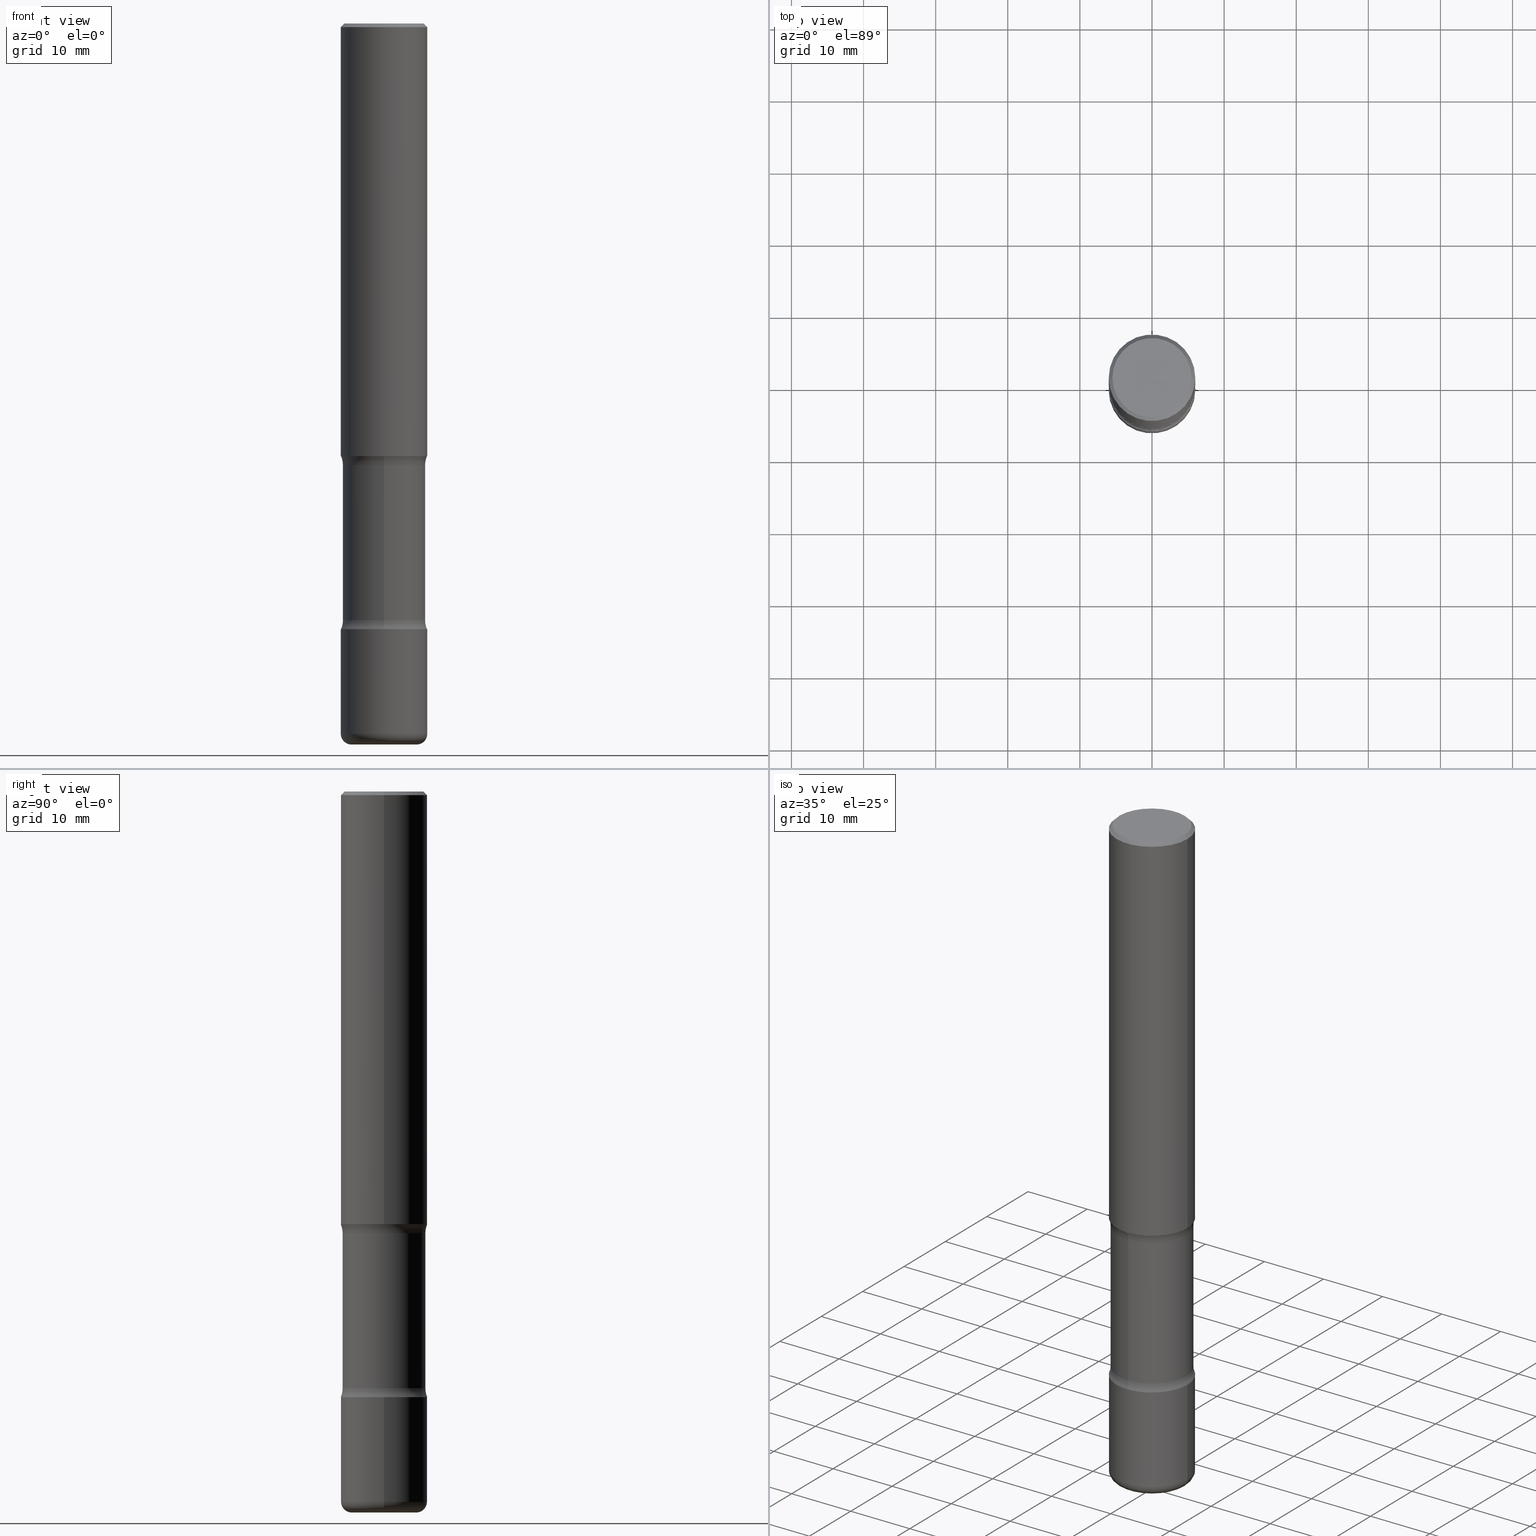
[diagram: canonical four-view strip — front | top / right | iso, engineering-drawing reading convention]
A machine part, canonical four-view strip (front | top / right | iso — engineering-drawing reading convention). The complete STEP part file that produces these views, byte-faithful:
ISO-10303-21;
HEADER;
FILE_DESCRIPTION (( 'STEP AP203' ),
    '1' );
FILE_NAME ('44783.STEP',
    '2024-03-02T03:13:59',
    ( '' ),
    ( '' ),
    'SwSTEP 2.0',
    'SolidWorks 2023',
    '' );
FILE_SCHEMA (( 'CONFIG_CONTROL_DESIGN' ));
ENDSEC;

DATA;
#1 = ADVANCED_FACE ( 'NONE', ( #389 ), #476, .F. ) ;
#2 = FACE_OUTER_BOUND ( 'NONE', #251, .T. ) ;
#3 = DIRECTION ( 'NONE',  ( -2.438088387897960049E-29, 3.491481338843145188E-15, 1.000000000000000000 ) ) ;
#4 = DIRECTION ( 'NONE',  ( 1.000000000000000000, -6.982962677686266711E-15, 0.000000000000000000 ) ) ;
#5 = CARTESIAN_POINT ( 'NONE',  ( 0.2361999999999999933, -1.649375784469496131E-15, 1.151752954443000088E-29 ) ) ;
#6 = VERTEX_POINT ( 'NONE', #385 ) ;
#7 = APPROVAL_STATUS ( 'not_yet_approved' ) ;
#8 = CARTESIAN_POINT ( 'NONE',  ( 1.649375784469555295E-15, 0.2361999999999919719, -2.362200000000000966 ) ) ;
#9 = AXIS2_PLACEMENT_3D ( 'NONE', #273, #316, #485 ) ;
#10 = SECURITY_CLASSIFICATION ( '', '', #538 ) ;
#11 = CALENDAR_DATE ( 2024, 1, 3 ) ;
#12 = DIRECTION ( 'NONE',  ( -0.7071067811865472397, 2.468850131082253905E-15, -0.7071067811865477948 ) ) ;
#13 = EDGE_CURVE ( 'NONE', #264, #363, #218, .T. ) ;
#14 = PERSON_AND_ORGANIZATION_ROLE ( 'design_owner' ) ;
#15 = PERSON_AND_ORGANIZATION ( #447, #151 ) ;
#16 = DIRECTION ( 'NONE',  ( 6.982962677686265922E-15, 1.000000000000000000, -3.469747663417771480E-15 ) ) ;
#17 = CIRCLE ( 'NONE', #248, 0.2362000000000002153 ) ;
#18 = AXIS2_PLACEMENT_3D ( 'NONE', #168, #346, #388 ) ;
#19 = ORIENTED_EDGE ( 'NONE', *, *, #306, .T. ) ;
#20 = EDGE_CURVE ( 'NONE', #77, #231, #413, .T. ) ;
#21 =( CONVERSION_BASED_UNIT ( 'INCH', #232 ) LENGTH_UNIT ( ) NAMED_UNIT ( #157 ) );
#22 = CARTESIAN_POINT ( 'NONE',  ( 7.966181769532969380E-29, -1.137359630996297475E-14, -3.257527452153434755 ) ) ;
#23 = ADVANCED_FACE ( 'NONE', ( #41 ), #349, .T. ) ;
#24 = CARTESIAN_POINT ( 'NONE',  ( 1.577800417023270691E-15, 0.2259499999999915743, -2.411772547846566805 ) ) ;
#25 = CARTESIAN_POINT ( 'NONE',  ( -1.585289574834976853E-15, -0.2259500000000114195, -3.257527452153434311 ) ) ;
#26 = AXIS2_PLACEMENT_3D ( 'NONE', #325, #106, #155 ) ;
#27 = VECTOR ( 'NONE', #36, 39.37007874015748143 ) ;
#28 = CARTESIAN_POINT ( 'NONE',  ( -0.2361999999999998545, 1.579546157692632044E-15, -0.02000000000000006981 ) ) ;
#29 = ADVANCED_FACE ( 'NONE', ( #521 ), #341, .F. ) ;
#30 = LINE ( 'NONE', #161, #42 ) ;
#31 = EDGE_CURVE ( 'NONE', #81, #6, #17, .T. ) ;
#32 = ORIENTED_EDGE ( 'NONE', *, *, #221, .T. ) ;
#33 = CARTESIAN_POINT ( 'NONE',  ( 0.2361999999999998545, -1.690279253850497785E-15, -0.02000000000000006981 ) ) ;
#34 = ORIENTED_EDGE ( 'NONE', *, *, #267, .T. ) ;
#35 = VECTOR ( 'NONE', #12, 39.37007874015748143 ) ;
#36 = DIRECTION ( 'NONE',  ( -2.445468806185136877E-29, 3.491481338843145188E-15, 1.000000000000000000 ) ) ;
#37 = EDGE_LOOP ( 'NONE', ( #119, #420, #499, #373 ) ) ;
#38 = CARTESIAN_POINT ( 'NONE',  ( -1.043851414335219820E-46, 1.490343170380447200E-32, 4.268512490100411279E-18 ) ) ;
#39 = ORIENTED_EDGE ( 'NONE', *, *, #433, .T. ) ;
#40 = DIRECTION ( 'NONE',  ( -2.445468806185136597E-29, 3.491481338843145583E-15, 1.000000000000000000 ) ) ;
#41 = FACE_OUTER_BOUND ( 'NONE', #446, .T. ) ;
#42 = VECTOR ( 'NONE', #456, 39.37007874015748143 ) ;
#43 = EDGE_CURVE ( 'NONE', #162, #298, #82, .T. ) ;
#44 = CARTESIAN_POINT ( 'NONE',  ( 9.627810689950883669E-29, -1.374596203102546341E-14, -3.937000000000000277 ) ) ;
#45 = DIRECTION ( 'NONE',  ( 2.573332013070723283E-29, -3.308373949061201717E-15, -1.000000000000000000 ) ) ;
#46 = DIRECTION ( 'NONE',  ( 6.982962677686265922E-15, 1.000000000000000000, -3.308373949061201717E-15 ) ) ;
#47 = DATE_TIME_ROLE ( 'classification_date' ) ;
#48 = CARTESIAN_POINT ( 'NONE',  ( 8.087409888934865187E-29, -1.154667793568816723E-14, -3.307100000000000151 ) ) ;
#49 = APPLICATION_CONTEXT ( 'configuration controlled 3d designs of mechanical parts and assemblies' ) ;
#50 = EDGE_LOOP ( 'NONE', ( #137, #399, #519, #548 ) ) ;
#51 = CARTESIAN_POINT ( 'NONE',  ( 0.1771000000000003127, -1.477629817411807190E-14, -3.877899999999999459 ) ) ;
#52 = AXIS2_PLACEMENT_3D ( 'NONE', #308, #362, #136 ) ;
#53 = CIRCLE ( 'NONE', #523, 0.2161999999999998090 ) ;
#54 = CARTESIAN_POINT ( 'NONE',  ( -0.2161999999999998090, 1.544631344304200789E-15, 4.268512490089730842E-18 ) ) ;
#55 = CARTESIAN_POINT ( 'NONE',  ( 4.890937612370289799E-31, -6.982962677686315028E-17, -0.02000000000000006981 ) ) ;
#56 = ORIENTED_EDGE ( 'NONE', *, *, #108, .F. ) ;
#57 = APPROVAL_ROLE ( '' ) ;
#58 = LINE ( 'NONE', #355, #35 ) ;
#59 = CIRCLE ( 'NONE', #233, 0.2362000000000002153 ) ;
#60 = DIRECTION ( 'NONE',  ( -2.445468806185136877E-29, 3.491481338843145188E-15, 1.000000000000000000 ) ) ;
#61 = FACE_OUTER_BOUND ( 'NONE', #37, .T. ) ;
#62 = VERTEX_POINT ( 'NONE', #86 ) ;
#63 = EDGE_CURVE ( 'NONE', #6, #81, #59, .T. ) ;
#64 = CARTESIAN_POINT ( 'NONE',  ( -1.550129522596380948E-15, -0.2259500000000137232, -3.936999999999999389 ) ) ;
#65 = AXIS2_PLACEMENT_3D ( 'NONE', #51, #134, #357 ) ;
#66 = AXIS2_PLACEMENT_3D ( 'NONE', #381, #40, #383 ) ;
#67 = CARTESIAN_POINT ( 'NONE',  ( 8.087409888934865187E-29, -1.154667793568816723E-14, -3.307100000000000151 ) ) ;
#68 = ORIENTED_EDGE ( 'NONE', *, *, #516, .F. ) ;
#69 = DIRECTION ( 'NONE',  ( 6.982962677686266711E-15, 1.000000000000000000, -2.418099573944910436E-15 ) ) ;
#70 = EDGE_CURVE ( 'NONE', #344, #363, #536, .T. ) ;
#71 = ORIENTED_EDGE ( 'NONE', *, *, #370, .F. ) ;
#72 = PLANE ( 'NONE',  #313 ) ;
#73 = ORIENTED_EDGE ( 'NONE', *, *, #335, .F. ) ;
#74 = AXIS2_PLACEMENT_3D ( 'NONE', #22, #409, #190 ) ;
#75 = AXIS2_PLACEMENT_3D ( 'NONE', #557, #475, #292 ) ;
#76 = DIRECTION ( 'NONE',  ( -2.445468806185136597E-29, 3.491481338843145583E-15, 1.000000000000000000 ) ) ;
#77 = VERTEX_POINT ( 'NONE', #402 ) ;
#78 = CARTESIAN_POINT ( 'NONE',  ( 1.577800417023309542E-15, 0.2259499999999864672, -3.937000000000000721 ) ) ;
#79 = ORIENTED_EDGE ( 'NONE', *, *, #435, .T. ) ;
#80 = DIRECTION ( 'NONE',  ( 1.000000000000000000, -6.860497997771530774E-15, 4.843041298412109915E-29 ) ) ;
#81 = VERTEX_POINT ( 'NONE', #99 ) ;
#82 = CIRCLE ( 'NONE', #93, 0.1771000000000003127 ) ;
#83 = CARTESIAN_POINT ( 'NONE',  ( -2.407691772317839748E-15, -0.3509500000000114750, -3.257527452153433867 ) ) ;
#84 = DIRECTION ( 'NONE',  ( 2.573332013070723283E-29, -3.308373949061201717E-15, -1.000000000000000000 ) ) ;
#85 = CALENDAR_DATE ( 2024, 1, 3 ) ;
#86 = CARTESIAN_POINT ( 'NONE',  ( 0.2362000000000002153, -1.319605372015766534E-14, -3.307100000000000151 ) ) ;
#87 = ORIENTED_EDGE ( 'NONE', *, *, #31, .F. ) ;
#88 = APPROVAL_DATE_TIME ( #98, #257 ) ;
#89 = DIRECTION ( 'NONE',  ( 2.445468806185136597E-29, -3.491481338843145583E-15, -1.000000000000000000 ) ) ;
#90 = EDGE_CURVE ( 'NONE', #263, #418, #407, .T. ) ;
#91 = PERSON_AND_ORGANIZATION ( #447, #151 ) ;
#92 = CARTESIAN_POINT ( 'NONE',  ( 0.2362000000000001598, -9.896953003084776152E-15, -2.362200000000000077 ) ) ;
#93 = AXIS2_PLACEMENT_3D ( 'NONE', #44, #482, #132 ) ;
#94 = CIRCLE ( 'NONE', #75, 0.2362000000000002153 ) ;
#95 = ORIENTED_EDGE ( 'NONE', *, *, #212, .T. ) ;
#96 = DIRECTION ( 'NONE',  ( -2.445468806185136597E-29, 3.491481338843145583E-15, 1.000000000000000000 ) ) ;
#97 = ADVANCED_FACE ( 'NONE', ( #401 ), #311, .T. ) ;
#98 = DATE_AND_TIME ( #181, #442 ) ;
#99 = CARTESIAN_POINT ( 'NONE',  ( -1.620449627073556192E-15, -0.2362000000000117339, -3.307099999999999707 ) ) ;
#100 = EDGE_CURVE ( 'NONE', #298, #263, #167, .T. ) ;
#101 = ORIENTED_EDGE ( 'NONE', *, *, #235, .F. ) ;
#102 = DATE_AND_TIME ( #549, #342 ) ;
#103 = CARTESIAN_POINT ( 'NONE',  ( 9.483283483505340095E-29, -1.353961548389983302E-14, -3.877899999999999459 ) ) ;
#104 = CIRCLE ( 'NONE', #176, 0.1250000000000000278 ) ;
#105 = AXIS2_PLACEMENT_3D ( 'NONE', #377, #552, #508 ) ;
#106 = DIRECTION ( 'NONE',  ( 2.573332013070723283E-29, -3.308373949061201717E-15, -1.000000000000000000 ) ) ;
#107 = ORIENTED_EDGE ( 'NONE', *, *, #455, .T. ) ;
#108 = EDGE_CURVE ( 'NONE', #324, #406, #225, .T. ) ;
#109 = FACE_OUTER_BOUND ( 'NONE', #379, .T. ) ;
#110 = PRODUCT_DEFINITION_SHAPE ( 'NONE', 'NONE',  #174 ) ;
#111 = CARTESIAN_POINT ( 'NONE',  ( 5.776686413970529753E-29, -8.247577218615279626E-15, -2.362200000000000077 ) ) ;
#112 = CC_DESIGN_PERSON_AND_ORGANIZATION_ASSIGNMENT ( #438, #146, ( #10 ) ) ;
#113 = ORIENTED_EDGE ( 'NONE', *, *, #13, .F. ) ;
#114 = VECTOR ( 'NONE', #239, 39.37007874015748143 ) ;
#115 =( GEOMETRIC_REPRESENTATION_CONTEXT ( 3 ) GLOBAL_UNCERTAINTY_ASSIGNED_CONTEXT ( ( #332 ) ) GLOBAL_UNIT_ASSIGNED_CONTEXT ( ( #21, #135, #142 ) ) REPRESENTATION_CONTEXT ( 'NONE', 'WORKASPACE' ) );
#116 = DIRECTION ( 'NONE',  ( -2.445468806185136597E-29, 3.491481338843145583E-15, 1.000000000000000000 ) ) ;
#117 = ORIENTED_EDGE ( 'NONE', *, *, #496, .F. ) ;
#118 = PLANE ( 'NONE',  #150 ) ;
#119 = ORIENTED_EDGE ( 'NONE', *, *, #435, .F. ) ;
#120 = DIRECTION ( 'NONE',  ( -1.000000000000000000, 6.982962677686266711E-15, 0.000000000000000000 ) ) ;
#121 = ORIENTED_EDGE ( 'NONE', *, *, #374, .F. ) ;
#122 = CLOSED_SHELL ( 'NONE', ( #469, #200, #481, #29, #372, #261, #404, #489 ) ) ;
#123 = APPROVAL_PERSON_ORGANIZATION ( #91, #243, #527 ) ;
#124 = FACE_OUTER_BOUND ( 'NONE', #188, .T. ) ;
#125 = DIRECTION ( 'NONE',  ( 1.000000000000000000, -6.982962677686266711E-15, 4.876176775795936353E-29 ) ) ;
#126 = CARTESIAN_POINT ( 'NONE',  ( 2.450670751734054227E-15, 0.3509499999999916020, -2.411772547846566805 ) ) ;
#127 = DIRECTION ( 'NONE',  ( 2.445468806185136597E-29, -3.491481338843145583E-15, -1.000000000000000000 ) ) ;
#128 = CARTESIAN_POINT ( 'NONE',  ( 5.776686413970529753E-29, -8.247577218615279626E-15, -2.362200000000000077 ) ) ;
#129 = AXIS2_PLACEMENT_3D ( 'NONE', #414, #544, #69 ) ;
#130 = CYLINDRICAL_SURFACE ( 'NONE', #450, 0.2259500000000000952 ) ;
#131 = CIRCLE ( 'NONE', #234, 0.2361999999999998545 ) ;
#132 = DIRECTION ( 'NONE',  ( 1.000000000000000000, -6.982962677686263555E-15, 0.000000000000000000 ) ) ;
#133 = DATE_AND_TIME ( #85, #560 ) ;
#134 = DIRECTION ( 'NONE',  ( -6.982962677686266711E-15, -1.000000000000000000, 3.491481338843145583E-15 ) ) ;
#135 =( NAMED_UNIT ( * ) PLANE_ANGLE_UNIT ( ) SI_UNIT ( $, .RADIAN. ) );
#136 = DIRECTION ( 'NONE',  ( -6.982962677686265922E-15, -1.000000000000000000, 3.308373949061201717E-15 ) ) ;
#137 = ORIENTED_EDGE ( 'NONE', *, *, #271, .T. ) ;
#138 = ADVANCED_FACE ( 'NONE', ( #491 ), #240, .T. ) ;
#139 = CARTESIAN_POINT ( 'NONE',  ( 9.627810689950883669E-29, -1.374596203102546341E-14, -3.937000000000000277 ) ) ;
#140 = CIRCLE ( 'NONE', #290, 0.2362000000000001598 ) ;
#141 = AXIS2_PLACEMENT_3D ( 'NONE', #301, #480, #246 ) ;
#142 =( NAMED_UNIT ( * ) SI_UNIT ( $, .STERADIAN. ) SOLID_ANGLE_UNIT ( ) );
#143 = DIRECTION ( 'NONE',  ( 1.000000000000000000, -6.982962677686270655E-15, 0.000000000000000000 ) ) ;
#144 = EDGE_LOOP ( 'NONE', ( #502, #285 ) ) ;
#145 = ORIENTED_EDGE ( 'NONE', *, *, #471, .T. ) ;
#146 = PERSON_AND_ORGANIZATION_ROLE ( 'classification_officer' ) ;
#147 = DIRECTION ( 'NONE',  ( 0.7071067811865472397, -7.319954787623254468E-15, -0.7071067811865477948 ) ) ;
#148 = MANIFOLD_SOLID_BREP ( 'Body-Move/Copy2[4]', #122 ) ;
#149 = CARTESIAN_POINT ( 'NONE',  ( -0.1771000000000003127, -1.228124429886869218E-14, -3.877899999999999459 ) ) ;
#150 = AXIS2_PLACEMENT_3D ( 'NONE', #111, #461, #458 ) ;
#151 = ORGANIZATION ( 'UNSPECIFIED', 'UNSPECIFIED', '' ) ;
#152 = EDGE_CURVE ( 'NONE', #231, #77, #386, .T. ) ;
#153 = DIRECTION ( 'NONE',  ( 1.000000000000000000, -6.982962677686268288E-15, 0.000000000000000000 ) ) ;
#154 = ORIENTED_EDGE ( 'NONE', *, *, #537, .F. ) ;
#155 = DIRECTION ( 'NONE',  ( 6.982962677686266711E-15, 1.000000000000000000, -2.418099573944910436E-15 ) ) ;
#156 = ORIENTED_EDGE ( 'NONE', *, *, #345, .F. ) ;
#157 = DIMENSIONAL_EXPONENTS ( 1.000000000000000000, 0.000000000000000000, 0.000000000000000000, 0.000000000000000000, 0.000000000000000000, 0.000000000000000000, 0.000000000000000000 ) ;
#158 = FACE_OUTER_BOUND ( 'NONE', #238, .T. ) ;
#159 = AXIS2_PLACEMENT_3D ( 'NONE', #282, #116, #199 ) ;
#160 = AXIS2_PLACEMENT_3D ( 'NONE', #547, #244, #497 ) ;
#161 = CARTESIAN_POINT ( 'NONE',  ( 0.2362000000000002709, -1.649375784469498103E-15, 1.151752954443001489E-29 ) ) ;
#162 = VERTEX_POINT ( 'NONE', #319 ) ;
#163 = DIRECTION ( 'NONE',  ( 6.982962677686265922E-15, 1.000000000000000000, -3.308373949061201717E-15 ) ) ;
#164 = DIRECTION ( 'NONE',  ( 6.982962677686265133E-15, 1.000000000000000000, -2.313165108945182696E-15 ) ) ;
#165 = DIRECTION ( 'NONE',  ( 1.000000000000000000, -6.982962677686266711E-15, 4.876176775795936353E-29 ) ) ;
#166 = DIRECTION ( 'NONE',  ( 6.982962677686265922E-15, 1.000000000000000000, -3.469747663417771480E-15 ) ) ;
#167 = CIRCLE ( 'NONE', #65, 0.05910000000000022874 ) ;
#168 = CARTESIAN_POINT ( 'NONE',  ( 9.627810689950883669E-29, -1.374596203102546341E-14, -3.937000000000000277 ) ) ;
#169 = ORIENTED_EDGE ( 'NONE', *, *, #13, .T. ) ;
#170 = CARTESIAN_POINT ( 'NONE',  ( 4.890937612370289799E-31, -6.982962677686315028E-17, -0.02000000000000006981 ) ) ;
#171 = EDGE_LOOP ( 'NONE', ( #555, #204, #39, #426 ) ) ;
#172 = CARTESIAN_POINT ( 'NONE',  ( 0.000000000000000000, 0.000000000000000000, 0.000000000000000000 ) ) ;
#173 = CARTESIAN_POINT ( 'NONE',  ( 5.655868469784339415E-29, -8.420595391220237306E-15, -2.362200000000000077 ) ) ;
#174 = PRODUCT_DEFINITION ( 'UNKNOWN', '', #226, #395 ) ;
#175 = ORIENTED_EDGE ( 'NONE', *, *, #90, .T. ) ;
#176 = AXIS2_PLACEMENT_3D ( 'NONE', #203, #329, #543 ) ;
#177 = APPROVAL_STATUS ( 'not_yet_approved' ) ;
#178 = VECTOR ( 'NONE', #45, 39.37007874015748143 ) ;
#179 = DIRECTION ( 'NONE',  ( -2.445468806185136597E-29, 3.491481338843145583E-15, 1.000000000000000000 ) ) ;
#180 = MANIFOLD_SOLID_BREP ( 'Body-Move/Copy2[2]', #185 ) ;
#181 = CALENDAR_DATE ( 2024, 1, 3 ) ;
#182 = DIRECTION ( 'NONE',  ( -1.000000000000000000, 6.982962677686266711E-15, 0.000000000000000000 ) ) ;
#183 = DIRECTION ( 'NONE',  ( -2.445468806185136597E-29, 3.491481338843145583E-15, 1.000000000000000000 ) ) ;
#184 = DIRECTION ( 'NONE',  ( 1.000000000000000000, 0.000000000000000000, 0.000000000000000000 ) ) ;
#185 = CLOSED_SHELL ( 'NONE', ( #309, #483, #138, #427, #1, #440 ) ) ;
#186 = DIRECTION ( 'NONE',  ( 1.000000000000000000, -6.982962677686266711E-15, 0.000000000000000000 ) ) ;
#187 = TOROIDAL_SURFACE ( 'NONE', #105, 0.3509500000000000397, 0.1250000000000000278 ) ;
#188 = EDGE_LOOP ( 'NONE', ( #415, #210 ) ) ;
#189 = APPROVAL_DATE_TIME ( #530, #243 ) ;
#190 = DIRECTION ( 'NONE',  ( 6.982962677686265922E-15, 1.000000000000000000, -3.308373949061201717E-15 ) ) ;
#191 = DIRECTION ( 'NONE',  ( 7.105427357601001859E-15, 1.000000000000000000, -3.491481338843145583E-15 ) ) ;
#192 = EDGE_CURVE ( 'NONE', #406, #324, #449, .T. ) ;
#193 = COORDINATED_UNIVERSAL_TIME_OFFSET ( 5, 0, .BEHIND. ) ;
#194 = CYLINDRICAL_SURFACE ( 'NONE', #159, 0.2361999999999999933 ) ;
#195 = ORIENTED_EDGE ( 'NONE', *, *, #326, .F. ) ;
#196 = TOROIDAL_SURFACE ( 'NONE', #74, 0.3509500000000000397, 0.1250000000000000278 ) ;
#197 = CIRCLE ( 'NONE', #380, 0.1250000000000000278 ) ;
#198 = CARTESIAN_POINT ( 'NONE',  ( 0.2161999999999998090, -1.586759460484350805E-15, 4.268512490111238857E-18 ) ) ;
#199 = DIRECTION ( 'NONE',  ( 1.000000000000000000, -6.982962677686266711E-15, 4.876176775795936353E-29 ) ) ;
#200 = ADVANCED_FACE ( 'NONE', ( #441 ), #196, .F. ) ;
#201 = ORIENTED_EDGE ( 'NONE', *, *, #471, .F. ) ;
#202 = PRODUCT_RELATED_PRODUCT_CATEGORY ( 'detail', '', ( #416 ) ) ;
#203 = CARTESIAN_POINT ( 'NONE',  ( 2.450670751734075132E-15, 0.3509499999999886599, -3.257527452153435643 ) ) ;
#204 = ORIENTED_EDGE ( 'NONE', *, *, #70, .T. ) ;
#205 = CIRCLE ( 'NONE', #522, 0.2362000000000001598 ) ;
#206 = CIRCLE ( 'NONE', #216, 0.2362000000000003264 ) ;
#207 = FACE_OUTER_BOUND ( 'NONE', #171, .T. ) ;
#208 = ORIENTED_EDGE ( 'NONE', *, *, #537, .T. ) ;
#209 = CARTESIAN_POINT ( 'NONE',  ( 9.708351723968114409E-29, -1.363062268620181866E-14, -3.937000000000000277 ) ) ;
#210 = ORIENTED_EDGE ( 'NONE', *, *, #43, .F. ) ;
#211 = EDGE_CURVE ( 'NONE', #264, #529, #140, .T. ) ;
#212 = EDGE_CURVE ( 'NONE', #213, #279, #58, .T. ) ;
#213 = VERTEX_POINT ( 'NONE', #54 ) ;
#214 = AXIS2_PLACEMENT_3D ( 'NONE', #103, #96, #143 ) ;
#215 = AXIS2_PLACEMENT_3D ( 'NONE', #305, #89, #182 ) ;
#216 = AXIS2_PLACEMENT_3D ( 'NONE', #337, #259, #425 ) ;
#217 = DIRECTION ( 'NONE',  ( -2.445468806185136597E-29, 3.491481338843145583E-15, 1.000000000000000000 ) ) ;
#218 = LINE ( 'NONE', #5, #465 ) ;
#219 = FACE_OUTER_BOUND ( 'NONE', #283, .T. ) ;
#220 = CARTESIAN_POINT ( 'NONE',  ( 8.087409888934865187E-29, -1.154667793568816723E-14, -3.307100000000000151 ) ) ;
#221 = EDGE_CURVE ( 'NONE', #418, #545, #539, .T. ) ;
#222 = VERTEX_POINT ( 'NONE', #236 ) ;
#223 = MECHANICAL_CONTEXT ( 'NONE', #513, 'mechanical' ) ;
#224 = DIRECTION ( 'NONE',  ( 2.573332013070723283E-29, -3.308373949061201717E-15, -1.000000000000000000 ) ) ;
#225 = CIRCLE ( 'NONE', #9, 0.2259500000000001507 ) ;
#226 = PRODUCT_DEFINITION_FORMATION_WITH_SPECIFIED_SOURCE ( 'ANY', '', #416, .NOT_KNOWN. ) ;
#227 = CARTESIAN_POINT ( 'NONE',  ( 5.776686413970529753E-29, -8.247577218615279626E-15, -2.362200000000000077 ) ) ;
#228 = CARTESIAN_POINT ( 'NONE',  ( 8.087409888934865187E-29, -1.154667793568816723E-14, -3.307100000000000151 ) ) ;
#229 = PERSON_AND_ORGANIZATION_ROLE ( 'creator' ) ;
#230 = DIRECTION ( 'NONE',  ( 1.000000000000000000, -6.982962677686263555E-15, 0.000000000000000000 ) ) ;
#231 = VERTEX_POINT ( 'NONE', #8 ) ;
#232 = LENGTH_MEASURE_WITH_UNIT ( LENGTH_MEASURE( 0.02539999999999999897 ), #265 );
#233 = AXIS2_PLACEMENT_3D ( 'NONE', #48, #224, #164 ) ;
#234 = AXIS2_PLACEMENT_3D ( 'NONE', #255, #348, #4 ) ;
#235 = EDGE_CURVE ( 'NONE', #279, #363, #533, .T. ) ;
#236 = CARTESIAN_POINT ( 'NONE',  ( 1.577800417023291793E-15, 0.2259499999999886877, -3.257527452153435199 ) ) ;
#237 = DIRECTION ( 'NONE',  ( -1.000000000000000000, 6.982962677686265922E-15, -4.876176775795935793E-29 ) ) ;
#238 = EDGE_LOOP ( 'NONE', ( #34, #107 ) ) ;
#239 = DIRECTION ( 'NONE',  ( 2.573332013070723283E-29, -3.308373949061201717E-15, -1.000000000000000000 ) ) ;
#240 = CONICAL_SURFACE ( 'NONE', #215, 0.2361999999999998545, 0.7853981633974479459 ) ;
#241 = DIRECTION ( 'NONE',  ( -1.000000000000000000, 6.982962677686265922E-15, -4.876176775795935793E-29 ) ) ;
#242 = EDGE_LOOP ( 'NONE', ( #87, #79, #303, #156 ) ) ;
#243 = APPROVAL ( #177, 'UNSPECIFIED' ) ;
#244 = DIRECTION ( 'NONE',  ( 1.000000000000000000, -6.860497997771530774E-15, 4.843041298412109915E-29 ) ) ;
#245 = ORIENTED_EDGE ( 'NONE', *, *, #20, .T. ) ;
#246 = DIRECTION ( 'NONE',  ( 6.982962677686265922E-15, 1.000000000000000000, -2.418099573944910042E-15 ) ) ;
#247 = ORIENTED_EDGE ( 'NONE', *, *, #70, .F. ) ;
#248 = AXIS2_PLACEMENT_3D ( 'NONE', #220, #391, #394 ) ;
#249 = CC_DESIGN_APPROVAL ( #257, ( #226 ) ) ;
#250 = CYLINDRICAL_SURFACE ( 'NONE', #141, 0.2259500000000000952 ) ;
#251 = EDGE_LOOP ( 'NONE', ( #460, #19, #195, #439 ) ) ;
#252 = CARTESIAN_POINT ( 'NONE',  ( 5.802532570468079339E-29, -8.557251244023685762E-15, -2.411772547846565917 ) ) ;
#253 = APPROVAL ( #7, 'UNSPECIFIED' ) ;
#254 = ORIENTED_EDGE ( 'NONE', *, *, #306, .F. ) ;
#255 = CARTESIAN_POINT ( 'NONE',  ( 4.890937612370289799E-31, -6.982962677686315028E-17, -0.02000000000000006981 ) ) ;
#256 = ORIENTED_EDGE ( 'NONE', *, *, #31, .T. ) ;
#257 = APPROVAL ( #535, 'UNSPECIFIED' ) ;
#258 = AXIS2_PLACEMENT_3D ( 'NONE', #490, #272, #184 ) ;
#259 = DIRECTION ( 'NONE',  ( -2.445468806185136597E-29, 3.491481338843145583E-15, 1.000000000000000000 ) ) ;
#260 = ORIENTED_EDGE ( 'NONE', *, *, #267, .F. ) ;
#261 = ADVANCED_FACE ( 'NONE', ( #526 ), #528, .F. ) ;
#262 = PERSON_AND_ORGANIZATION ( #447, #151 ) ;
#263 = VERTEX_POINT ( 'NONE', #314 ) ;
#264 = VERTEX_POINT ( 'NONE', #92 ) ;
#265 =( LENGTH_UNIT ( ) NAMED_UNIT ( * ) SI_UNIT ( $, .METRE. ) );
#266 = DIRECTION ( 'NONE',  ( -2.445468806185136597E-29, 3.491481338843145583E-15, 1.000000000000000000 ) ) ;
#267 = EDGE_CURVE ( 'NONE', #62, #545, #378, .T. ) ;
#268 = CIRCLE ( 'NONE', #26, 0.2259500000000000397 ) ;
#269 = LOCAL_TIME ( 22, 13, 59.00000000000000000, #408 ) ;
#270 = DIRECTION ( 'NONE',  ( 1.000000000000000000, -6.982962677686268288E-15, 0.000000000000000000 ) ) ;
#271 = EDGE_CURVE ( 'NONE', #298, #162, #276, .T. ) ;
#272 = DIRECTION ( 'NONE',  ( 0.000000000000000000, 0.000000000000000000, 1.000000000000000000 ) ) ;
#273 = CARTESIAN_POINT ( 'NONE',  ( 5.783435094127386859E-29, -8.584599917104405503E-15, -2.411772547846565917 ) ) ;
#274 = PERSON_AND_ORGANIZATION_ROLE ( 'creator' ) ;
#275 = DIRECTION ( 'NONE',  ( 2.573332013070723283E-29, -3.308373949061201717E-15, -1.000000000000000000 ) ) ;
#276 = CIRCLE ( 'NONE', #532, 0.1771000000000003127 ) ;
#277 = DIRECTION ( 'NONE',  ( 6.982962677686265922E-15, 1.000000000000000000, -3.627149360917363879E-15 ) ) ;
#278 = DIRECTION ( 'NONE',  ( 2.438088387897960049E-29, -3.491481338843145188E-15, -1.000000000000000000 ) ) ;
#279 = VERTEX_POINT ( 'NONE', #28 ) ;
#280 = FACE_OUTER_BOUND ( 'NONE', #462, .T. ) ;
#281 = ADVANCED_FACE ( 'NONE', ( #540 ), #371, .T. ) ;
#282 = CARTESIAN_POINT ( 'NONE',  ( 0.000000000000000000, 0.000000000000000000, 0.000000000000000000 ) ) ;
#283 = EDGE_LOOP ( 'NONE', ( #117, #353, #169, #101 ) ) ;
#284 = CC_DESIGN_SECURITY_CLASSIFICATION ( #10, ( #226 ) ) ;
#285 = ORIENTED_EDGE ( 'NONE', *, *, #328, .F. ) ;
#286 = CARTESIAN_POINT ( 'NONE',  ( -0.2362000000000004374, -1.186131354203447347E-14, -3.877899999999999459 ) ) ;
#287 = EDGE_LOOP ( 'NONE', ( #411, #382, #245, #201 ) ) ;
#288 = FACE_OUTER_BOUND ( 'NONE', #507, .T. ) ;
#289 = EDGE_CURVE ( 'NONE', #263, #62, #30, .T. ) ;
#290 = AXIS2_PLACEMENT_3D ( 'NONE', #227, #266, #270 ) ;
#291 = AXIS2_PLACEMENT_3D ( 'NONE', #170, #127, #120 ) ;
#292 = DIRECTION ( 'NONE',  ( 1.000000000000000000, -6.982962677686266711E-15, 0.000000000000000000 ) ) ;
#293 = EDGE_LOOP ( 'NONE', ( #454, #256 ) ) ;
#294 = CARTESIAN_POINT ( 'NONE',  ( -0.2361999999999999933, 1.678301941865356591E-15, -1.161852468318208757E-29 ) ) ;
#295 = EDGE_LOOP ( 'NONE', ( #247, #154, #95, #429 ) ) ;
#296 = CC_DESIGN_PERSON_AND_ORGANIZATION_ASSIGNMENT ( #400, #229, ( #174 ) ) ;
#297 = DIRECTION ( 'NONE',  ( 2.573332013070723283E-29, -3.308373949061201717E-15, -1.000000000000000000 ) ) ;
#298 = VERTEX_POINT ( 'NONE', #417 ) ;
#299 = AXIS2_PLACEMENT_3D ( 'NONE', #55, #179, #186 ) ;
#300 = CIRCLE ( 'NONE', #387, 0.2161999999999998090 ) ;
#301 = CARTESIAN_POINT ( 'NONE',  ( 9.708351723968114409E-29, -1.363062268620181866E-14, -3.937000000000000277 ) ) ;
#302 = ORIENTED_EDGE ( 'NONE', *, *, #289, .F. ) ;
#303 = ORIENTED_EDGE ( 'NONE', *, *, #335, .T. ) ;
#304 = APPROVAL_ROLE ( '' ) ;
#305 = CARTESIAN_POINT ( 'NONE',  ( 4.890937612370289799E-31, -6.982962677686315028E-17, -0.02000000000000006981 ) ) ;
#306 = EDGE_CURVE ( 'NONE', #406, #310, #331, .T. ) ;
#307 = APPLICATION_PROTOCOL_DEFINITION ( 'international standard', 'config_control_design', 1994, #513 ) ;
#308 = CARTESIAN_POINT ( 'NONE',  ( 8.087409888934865187E-29, -1.154667793568816723E-14, -3.307100000000000151 ) ) ;
#309 = ADVANCED_FACE ( 'NONE', ( #280 ), #194, .T. ) ;
#310 = VERTEX_POINT ( 'NONE', #25 ) ;
#311 = TOROIDAL_SURFACE ( 'NONE', #368, 0.1771000000000003127, 0.05910000000000024956 ) ;
#312 = DATE_AND_TIME ( #11, #515 ) ;
#313 = AXIS2_PLACEMENT_3D ( 'NONE', #366, #322, #237 ) ;
#314 = CARTESIAN_POINT ( 'NONE',  ( 0.2362000000000004374, -1.518899126836933270E-14, -3.877899999999999459 ) ) ;
#315 = COORDINATED_UNIVERSAL_TIME_OFFSET ( 5, 0, .BEHIND. ) ;
#316 = DIRECTION ( 'NONE',  ( 2.573332013070723283E-29, -3.308373949061201717E-15, -1.000000000000000000 ) ) ;
#317 = CC_DESIGN_DATE_AND_TIME_ASSIGNMENT ( #312, #354, ( #174 ) ) ;
#318 = COORDINATED_UNIVERSAL_TIME_OFFSET ( 5, 0, .BEHIND. ) ;
#319 = CARTESIAN_POINT ( 'NONE',  ( -0.1771000000000003127, -1.217445219401439645E-14, -3.937000000000000277 ) ) ;
#320 = SHAPE_DEFINITION_REPRESENTATION ( #110, #474 ) ;
#321 = CIRCLE ( 'NONE', #396, 0.05910000000000022874 ) ;
#322 = DIRECTION ( 'NONE',  ( 2.438088387897960049E-29, -3.491481338843145188E-15, -1.000000000000000000 ) ) ;
#323 = APPROVAL_PERSON_ORGANIZATION ( #393, #253, #304 ) ;
#324 = VERTEX_POINT ( 'NONE', #24 ) ;
#325 = CARTESIAN_POINT ( 'NONE',  ( 7.959843264591818864E-29, -1.138267340980399904E-14, -3.257527452153434755 ) ) ;
#326 = EDGE_CURVE ( 'NONE', #222, #310, #477, .T. ) ;
#327 = ORIENTED_EDGE ( 'NONE', *, *, #100, .T. ) ;
#328 = EDGE_CURVE ( 'NONE', #529, #264, #205, .T. ) ;
#329 = DIRECTION ( 'NONE',  ( -1.000000000000000000, 6.982962677686265922E-15, -4.883557194083112901E-29 ) ) ;
#330 = EDGE_LOOP ( 'NONE', ( #121, #56, #145, #452 ) ) ;
#331 = LINE ( 'NONE', #64, #114 ) ;
#332 = UNCERTAINTY_MEASURE_WITH_UNIT (LENGTH_MEASURE( 1.000000000000000082E-05 ), #21, 'distance_accuracy_value', 'NONE');
#333 = ORIENTED_EDGE ( 'NONE', *, *, #455, .F. ) ;
#334 = CC_DESIGN_APPROVAL ( #253, ( #10 ) ) ;
#335 = EDGE_CURVE ( 'NONE', #310, #222, #268, .T. ) ;
#336 = DIRECTION ( 'NONE',  ( -2.445468806185136597E-29, 3.491481338843145583E-15, 1.000000000000000000 ) ) ;
#337 = CARTESIAN_POINT ( 'NONE',  ( 9.483283483505340095E-29, -1.353961548389983302E-14, -3.877899999999999459 ) ) ;
#338 = ORIENTED_EDGE ( 'NONE', *, *, #152, .F. ) ;
#339 = DIRECTION ( 'NONE',  ( 1.000000000000000000, -6.982962677686266711E-15, 4.876217060660160159E-29 ) ) ;
#340 = DIRECTION ( 'NONE',  ( 1.000000000000000000, -6.982962677686265922E-15, 4.876176775795935793E-29 ) ) ;
#341 = TOROIDAL_SURFACE ( 'NONE', #422, 0.3509500000000000952, 0.1250000000000000278 ) ;
#342 = LOCAL_TIME ( 22, 13, 59.00000000000000000, #193 ) ;
#343 = DIRECTION ( 'NONE',  ( 6.860497997771529985E-15, 1.000000000000000000, 0.000000000000000000 ) ) ;
#344 = VERTEX_POINT ( 'NONE', #198 ) ;
#345 = EDGE_CURVE ( 'NONE', #6, #222, #104, .T. ) ;
#346 = DIRECTION ( 'NONE',  ( 2.438088387897960049E-29, -3.491481338843145188E-15, -1.000000000000000000 ) ) ;
#347 = ORIENTED_EDGE ( 'NONE', *, *, #503, .T. ) ;
#348 = DIRECTION ( 'NONE',  ( -2.445468806185136597E-29, 3.491481338843145583E-15, 1.000000000000000000 ) ) ;
#349 = CYLINDRICAL_SURFACE ( 'NONE', #558, 0.2362000000000002709 ) ;
#350 = MANIFOLD_SOLID_BREP ( 'Body-Move/Copy2[1]', #494 ) ;
#351 = AXIS2_PLACEMENT_3D ( 'NONE', #453, #336, #410 ) ;
#352 = CIRCLE ( 'NONE', #160, 0.1250000000000000278 ) ;
#353 = ORIENTED_EDGE ( 'NONE', *, *, #328, .T. ) ;
#354 = DATE_TIME_ROLE ( 'creation_date' ) ;
#355 = CARTESIAN_POINT ( 'NONE',  ( -0.2361999999999998545, 1.579546157692632044E-15, -0.02000000000000006981 ) ) ;
#356 = PERSON_AND_ORGANIZATION ( #447, #151 ) ;
#357 = DIRECTION ( 'NONE',  ( 1.000000000000000000, -6.982962677686268288E-15, 0.000000000000000000 ) ) ;
#358 = DIRECTION ( 'NONE',  ( 1.000000000000000000, -6.982962677686266711E-15, 0.000000000000000000 ) ) ;
#359 = AXIS2_PLACEMENT_3D ( 'NONE', #128, #3, #340 ) ;
#360 = AXIS2_PLACEMENT_3D ( 'NONE', #67, #278, #241 ) ;
#361 = COORDINATED_UNIVERSAL_TIME_OFFSET ( 5, 0, .BEHIND. ) ;
#362 = DIRECTION ( 'NONE',  ( -2.573332013070722722E-29, 3.308373949061201717E-15, 1.000000000000000000 ) ) ;
#363 = VERTEX_POINT ( 'NONE', #33 ) ;
#364 = PERSON_AND_ORGANIZATION ( #447, #151 ) ;
#365 = DIRECTION ( 'NONE',  ( 2.573332013070723283E-29, -3.308373949061201717E-15, -1.000000000000000000 ) ) ;
#366 = CARTESIAN_POINT ( 'NONE',  ( 1.509716530915769337E-15, 0.2161999999999998090, -7.527240092128372163E-16 ) ) ;
#367 = APPROVAL_DATE_TIME ( #102, #253 ) ;
#368 = AXIS2_PLACEMENT_3D ( 'NONE', #484, #443, #531 ) ;
#369 = ORIENTED_EDGE ( 'NONE', *, *, #496, .T. ) ;
#370 = EDGE_CURVE ( 'NONE', #162, #418, #321, .T. ) ;
#371 = CYLINDRICAL_SURFACE ( 'NONE', #351, 0.2362000000000002709 ) ;
#372 = ADVANCED_FACE ( 'NONE', ( #109 ), #118, .F. ) ;
#373 = ORIENTED_EDGE ( 'NONE', *, *, #326, .T. ) ;
#374 = EDGE_CURVE ( 'NONE', #406, #77, #352, .T. ) ;
#375 = CARTESIAN_POINT ( 'NONE',  ( 5.776686413970529753E-29, -8.247577218615279626E-15, -2.362200000000000077 ) ) ;
#376 = ORIENTED_EDGE ( 'NONE', *, *, #20, .F. ) ;
#377 = CARTESIAN_POINT ( 'NONE',  ( 7.966181769532969380E-29, -1.137359630996297475E-14, -3.257527452153434755 ) ) ;
#378 = CIRCLE ( 'NONE', #512, 0.2362000000000002153 ) ;
#379 = EDGE_LOOP ( 'NONE', ( #338, #376 ) ) ;
#380 = AXIS2_PLACEMENT_3D ( 'NONE', #126, #464, #468 ) ;
#381 = CARTESIAN_POINT ( 'NONE',  ( 9.483283483505340095E-29, -1.353961548389983302E-14, -3.877899999999999459 ) ) ;
#382 = ORIENTED_EDGE ( 'NONE', *, *, #374, .T. ) ;
#383 = DIRECTION ( 'NONE',  ( 1.000000000000000000, -6.982962677686265133E-15, 4.883557194083112340E-29 ) ) ;
#384 = DIRECTION ( 'NONE',  ( 2.573332013070723283E-29, -3.308373949061201717E-15, -1.000000000000000000 ) ) ;
#385 = CARTESIAN_POINT ( 'NONE',  ( 1.649375784469578172E-15, 0.2361999999999886135, -3.307100000000001039 ) ) ;
#386 = CIRCLE ( 'NONE', #550, 0.2362000000000003819 ) ;
#387 = AXIS2_PLACEMENT_3D ( 'NONE', #553, #76, #472 ) ;
#388 = DIRECTION ( 'NONE',  ( -1.000000000000000000, 6.982962677686265922E-15, -4.876176775795935793E-29 ) ) ;
#389 = FACE_OUTER_BOUND ( 'NONE', #144, .T. ) ;
#390 = DIRECTION ( 'NONE',  ( 2.573332013070723283E-29, -3.308373949061201717E-15, -1.000000000000000000 ) ) ;
#391 = DIRECTION ( 'NONE',  ( 2.573332013070723283E-29, -3.308373949061201717E-15, -1.000000000000000000 ) ) ;
#392 = ORIENTED_EDGE ( 'NONE', *, *, #431, .T. ) ;
#393 = PERSON_AND_ORGANIZATION ( #447, #151 ) ;
#394 = DIRECTION ( 'NONE',  ( 6.982962677686265133E-15, 1.000000000000000000, -2.313165108945182696E-15 ) ) ;
#395 = DESIGN_CONTEXT ( 'detailed design', #49, 'design' ) ;
#396 = AXIS2_PLACEMENT_3D ( 'NONE', #149, #191, #498 ) ;
#397 = ADVANCED_FACE ( 'NONE', ( #158 ), #505, .F. ) ;
#398 = TOROIDAL_SURFACE ( 'NONE', #459, 0.3509500000000000952, 0.1250000000000000278 ) ;
#399 = ORIENTED_EDGE ( 'NONE', *, *, #370, .T. ) ;
#400 = PERSON_AND_ORGANIZATION ( #447, #151 ) ;
#401 = FACE_OUTER_BOUND ( 'NONE', #50, .T. ) ;
#402 = CARTESIAN_POINT ( 'NONE',  ( -1.620449627073581633E-15, -0.2362000000000087641, -2.362199999999999189 ) ) ;
#403 = APPLICATION_PROTOCOL_DEFINITION ( 'international standard', 'config_control_design', 1994, #49 ) ;
#404 = ADVANCED_FACE ( 'NONE', ( #61 ), #187, .F. ) ;
#405 = CARTESIAN_POINT ( 'NONE',  ( 0.2361999999999998545, -1.690279253850497785E-15, -0.02000000000000006981 ) ) ;
#406 = VERTEX_POINT ( 'NONE', #419 ) ;
#407 = CIRCLE ( 'NONE', #214, 0.2362000000000003264 ) ;
#408 = COORDINATED_UNIVERSAL_TIME_OFFSET ( 5, 0, .BEHIND. ) ;
#409 = DIRECTION ( 'NONE',  ( 2.573332013070723283E-29, -3.308373949061201717E-15, -1.000000000000000000 ) ) ;
#410 = DIRECTION ( 'NONE',  ( 1.000000000000000000, -6.982962677686266711E-15, 4.876176775795936353E-29 ) ) ;
#411 = ORIENTED_EDGE ( 'NONE', *, *, #192, .F. ) ;
#412 = LINE ( 'NONE', #78, #178 ) ;
#413 = CIRCLE ( 'NONE', #504, 0.2362000000000003819 ) ;
#414 = CARTESIAN_POINT ( 'NONE',  ( 7.959843264591818864E-29, -1.138267340980399904E-14, -3.257527452153434755 ) ) ;
#415 = ORIENTED_EDGE ( 'NONE', *, *, #271, .F. ) ;
#416 = PRODUCT ( '44783', '44783', '', ( #223 ) ) ;
#417 = CARTESIAN_POINT ( 'NONE',  ( 0.1771000000000003127, -1.498264472124370230E-14, -3.937000000000000277 ) ) ;
#418 = VERTEX_POINT ( 'NONE', #286 ) ;
#419 = CARTESIAN_POINT ( 'NONE',  ( -1.585289574835001111E-15, -0.2259500000000087272, -2.411772547846565029 ) ) ;
#420 = ORIENTED_EDGE ( 'NONE', *, *, #63, .F. ) ;
#421 = LINE ( 'NONE', #294, #27 ) ;
#422 = AXIS2_PLACEMENT_3D ( 'NONE', #436, #84, #46 ) ;
#423 = ORIENTED_EDGE ( 'NONE', *, *, #289, .T. ) ;
#424 = CIRCLE ( 'NONE', #467, 0.1250000000000000278 ) ;
#425 = DIRECTION ( 'NONE',  ( 1.000000000000000000, -6.982962677686270655E-15, 0.000000000000000000 ) ) ;
#426 = ORIENTED_EDGE ( 'NONE', *, *, #212, .F. ) ;
#427 = ADVANCED_FACE ( 'NONE', ( #463 ), #72, .F. ) ;
#428 = FACE_OUTER_BOUND ( 'NONE', #487, .T. ) ;
#429 = ORIENTED_EDGE ( 'NONE', *, *, #235, .T. ) ;
#430 = FACE_OUTER_BOUND ( 'NONE', #287, .T. ) ;
#431 = EDGE_CURVE ( 'NONE', #324, #222, #412, .T. ) ;
#432 = DIRECTION ( 'NONE',  ( -2.445468806185136877E-29, 3.491481338843145188E-15, 1.000000000000000000 ) ) ;
#433 = EDGE_CURVE ( 'NONE', #363, #279, #131, .T. ) ;
#434 = CARTESIAN_POINT ( 'NONE',  ( -0.2362000000000001598, -2.480401480830709941E-15, -2.362200000000000077 ) ) ;
#435 = EDGE_CURVE ( 'NONE', #81, #310, #424, .T. ) ;
#436 = CARTESIAN_POINT ( 'NONE',  ( 5.802532570468079339E-29, -8.557251244023685762E-15, -2.411772547846565917 ) ) ;
#437 = ORIENTED_EDGE ( 'NONE', *, *, #221, .F. ) ;
#438 = PERSON_AND_ORGANIZATION ( #447, #151 ) ;
#439 = ORIENTED_EDGE ( 'NONE', *, *, #431, .F. ) ;
#440 = ADVANCED_FACE ( 'NONE', ( #219 ), #520, .T. ) ;
#441 = FACE_OUTER_BOUND ( 'NONE', #242, .T. ) ;
#442 = LOCAL_TIME ( 22, 13, 59.00000000000000000, #315 ) ;
#443 = DIRECTION ( 'NONE',  ( -2.445468806185136597E-29, 3.491481338843145583E-15, 1.000000000000000000 ) ) ;
#444 = ADVANCED_FACE ( 'NONE', ( #124 ), #509, .T. ) ;
#445 = CARTESIAN_POINT ( 'NONE',  ( 5.655868469784339415E-29, -8.420595391220237306E-15, -2.362200000000000077 ) ) ;
#446 = EDGE_LOOP ( 'NONE', ( #175, #32, #260, #302 ) ) ;
#447 = PERSON ( 'UNSPECIFIED', 'UNSPECIFIED', 'UNSPECIFIED', ('UNSPECIFIED'), ('UNSPECIFIED'), ('UNSPECIFIED') ) ;
#448 = CALENDAR_DATE ( 2024, 1, 3 ) ;
#449 = CIRCLE ( 'NONE', #541, 0.2259500000000001507 ) ;
#450 = AXIS2_PLACEMENT_3D ( 'NONE', #209, #297, #517 ) ;
#451 = CARTESIAN_POINT ( 'NONE',  ( -0.2362000000000002709, 1.678301941865358564E-15, -1.161852468318210018E-29 ) ) ;
#452 = ORIENTED_EDGE ( 'NONE', *, *, #152, .T. ) ;
#453 = CARTESIAN_POINT ( 'NONE',  ( 0.000000000000000000, 0.000000000000000000, 0.000000000000000000 ) ) ;
#454 = ORIENTED_EDGE ( 'NONE', *, *, #63, .T. ) ;
#455 = EDGE_CURVE ( 'NONE', #545, #62, #94, .T. ) ;
#456 = DIRECTION ( 'NONE',  ( -2.445468806185136877E-29, 3.491481338843145188E-15, 1.000000000000000000 ) ) ;
#457 = VECTOR ( 'NONE', #60, 39.37007874015748143 ) ;
#458 = DIRECTION ( 'NONE',  ( 6.982962677686265922E-15, 1.000000000000000000, -3.308373949061201717E-15 ) ) ;
#459 = AXIS2_PLACEMENT_3D ( 'NONE', #252, #390, #163 ) ;
#460 = ORIENTED_EDGE ( 'NONE', *, *, #108, .T. ) ;
#461 = DIRECTION ( 'NONE',  ( 2.573332013070722722E-29, -3.308373949061201717E-15, -1.000000000000000000 ) ) ;
#462 = EDGE_LOOP ( 'NONE', ( #473, #369, #466, #113 ) ) ;
#463 = FACE_OUTER_BOUND ( 'NONE', #470, .T. ) ;
#464 = DIRECTION ( 'NONE',  ( -1.000000000000000000, 6.982962677686265922E-15, -4.883557194083112901E-29 ) ) ;
#465 = VECTOR ( 'NONE', #432, 39.37007874015748143 ) ;
#466 = ORIENTED_EDGE ( 'NONE', *, *, #433, .F. ) ;
#467 = AXIS2_PLACEMENT_3D ( 'NONE', #83, #80, #343 ) ;
#468 = DIRECTION ( 'NONE',  ( -6.982962677686265133E-15, -1.000000000000000000, 0.000000000000000000 ) ) ;
#469 = ADVANCED_FACE ( 'NONE', ( #2 ), #130, .T. ) ;
#470 = EDGE_LOOP ( 'NONE', ( #208, #347 ) ) ;
#471 = EDGE_CURVE ( 'NONE', #324, #231, #197, .T. ) ;
#472 = DIRECTION ( 'NONE',  ( 1.000000000000000000, -6.982962677686266711E-15, 4.876217060660160159E-29 ) ) ;
#473 = ORIENTED_EDGE ( 'NONE', *, *, #211, .T. ) ;
#474 = ADVANCED_BREP_SHAPE_REPRESENTATION ( '44783', ( #350, #180, #148, #258 ), #115 ) ;
#475 = DIRECTION ( 'NONE',  ( -2.445468806185136597E-29, 3.491481338843145583E-15, 1.000000000000000000 ) ) ;
#476 = PLANE ( 'NONE',  #359 ) ;
#477 = CIRCLE ( 'NONE', #129, 0.2259500000000000397 ) ;
#478 = AXIS2_PLACEMENT_3D ( 'NONE', #172, #217, #165 ) ;
#479 = CC_DESIGN_PERSON_AND_ORGANIZATION_ASSIGNMENT ( #356, #274, ( #226 ) ) ;
#480 = DIRECTION ( 'NONE',  ( 2.573332013070723283E-29, -3.308373949061201717E-15, -1.000000000000000000 ) ) ;
#481 = ADVANCED_FACE ( 'NONE', ( #430 ), #398, .F. ) ;
#482 = DIRECTION ( 'NONE',  ( -2.445468806185136597E-29, 3.491481338843145583E-15, 1.000000000000000000 ) ) ;
#483 = ADVANCED_FACE ( 'NONE', ( #207 ), #551, .T. ) ;
#484 = CARTESIAN_POINT ( 'NONE',  ( 9.483283483505340095E-29, -1.353961548389983302E-14, -3.877899999999999459 ) ) ;
#485 = DIRECTION ( 'NONE',  ( 6.982962677686265922E-15, 1.000000000000000000, -3.627149360917363879E-15 ) ) ;
#486 = VECTOR ( 'NONE', #147, 39.37007874015748143 ) ;
#487 = EDGE_LOOP ( 'NONE', ( #71, #492, #327, #68 ) ) ;
#488 = DIRECTION ( 'NONE',  ( -2.445468806185136597E-29, 3.491481338843145583E-15, 1.000000000000000000 ) ) ;
#489 = ADVANCED_FACE ( 'NONE', ( #288 ), #250, .T. ) ;
#490 = CARTESIAN_POINT ( 'NONE',  ( 0.000000000000000000, 0.000000000000000000, 0.000000000000000000 ) ) ;
#491 = FACE_OUTER_BOUND ( 'NONE', #295, .T. ) ;
#492 = ORIENTED_EDGE ( 'NONE', *, *, #43, .T. ) ;
#493 = CARTESIAN_POINT ( 'NONE',  ( 5.783435094127386859E-29, -8.584599917104405503E-15, -2.411772547846565917 ) ) ;
#494 = CLOSED_SHELL ( 'NONE', ( #23, #97, #444, #500, #281, #397 ) ) ;
#495 = CC_DESIGN_APPROVAL ( #243, ( #174 ) ) ;
#496 = EDGE_CURVE ( 'NONE', #529, #279, #421, .T. ) ;
#497 = DIRECTION ( 'NONE',  ( 6.860497997771532351E-15, 1.000000000000000000, 0.000000000000000000 ) ) ;
#498 = DIRECTION ( 'NONE',  ( -1.000000000000000000, 7.105427357600997914E-15, 0.000000000000000000 ) ) ;
#499 = ORIENTED_EDGE ( 'NONE', *, *, #345, .T. ) ;
#500 = ADVANCED_FACE ( 'NONE', ( #428 ), #542, .T. ) ;
#501 = DIRECTION ( 'NONE',  ( -2.445468806185136597E-29, 3.491481338843145583E-15, 1.000000000000000000 ) ) ;
#502 = ORIENTED_EDGE ( 'NONE', *, *, #211, .F. ) ;
#503 = EDGE_CURVE ( 'NONE', #344, #213, #300, .T. ) ;
#504 = AXIS2_PLACEMENT_3D ( 'NONE', #173, #384, #166 ) ;
#505 = PLANE ( 'NONE',  #360 ) ;
#506 = CC_DESIGN_DATE_AND_TIME_ASSIGNMENT ( #133, #47, ( #10 ) ) ;
#507 = EDGE_LOOP ( 'NONE', ( #254, #514, #392, #73 ) ) ;
#508 = DIRECTION ( 'NONE',  ( 6.982962677686265922E-15, 1.000000000000000000, -3.308373949061201717E-15 ) ) ;
#509 = PLANE ( 'NONE',  #18 ) ;
#510 = ORIENTED_EDGE ( 'NONE', *, *, #516, .T. ) ;
#511 = CARTESIAN_POINT ( 'NONE',  ( -0.2362000000000002153, -1.086484476792864136E-14, -3.307100000000000151 ) ) ;
#512 = AXIS2_PLACEMENT_3D ( 'NONE', #228, #183, #358 ) ;
#513 = APPLICATION_CONTEXT ( 'configuration controlled 3d designs of mechanical parts and assemblies' ) ;
#514 = ORIENTED_EDGE ( 'NONE', *, *, #192, .T. ) ;
#515 = LOCAL_TIME ( 22, 13, 59.00000000000000000, #361 ) ;
#516 = EDGE_CURVE ( 'NONE', #418, #263, #206, .T. ) ;
#517 = DIRECTION ( 'NONE',  ( 6.982962677686265922E-15, 1.000000000000000000, -2.418099573944910042E-15 ) ) ;
#518 = CARTESIAN_POINT ( 'NONE',  ( 0.000000000000000000, 0.000000000000000000, 0.000000000000000000 ) ) ;
#519 = ORIENTED_EDGE ( 'NONE', *, *, #90, .F. ) ;
#520 = CYLINDRICAL_SURFACE ( 'NONE', #478, 0.2361999999999999933 ) ;
#521 = FACE_OUTER_BOUND ( 'NONE', #330, .T. ) ;
#522 = AXIS2_PLACEMENT_3D ( 'NONE', #375, #501, #153 ) ;
#523 = AXIS2_PLACEMENT_3D ( 'NONE', #38, #554, #339 ) ;
#524 = EDGE_LOOP ( 'NONE', ( #437, #510, #423, #333 ) ) ;
#525 = PERSON_AND_ORGANIZATION_ROLE ( 'design_supplier' ) ;
#526 = FACE_OUTER_BOUND ( 'NONE', #293, .T. ) ;
#527 = APPROVAL_ROLE ( '' ) ;
#528 = PLANE ( 'NONE',  #52 ) ;
#529 = VERTEX_POINT ( 'NONE', #434 ) ;
#530 = DATE_AND_TIME ( #448, #269 ) ;
#531 = DIRECTION ( 'NONE',  ( 1.000000000000000000, -6.982962677686265133E-15, 4.883557194083112340E-29 ) ) ;
#532 = AXIS2_PLACEMENT_3D ( 'NONE', #139, #488, #230 ) ;
#533 = CIRCLE ( 'NONE', #299, 0.2361999999999998545 ) ;
#534 = APPROVAL_PERSON_ORGANIZATION ( #15, #257, #57 ) ;
#535 = APPROVAL_STATUS ( 'not_yet_approved' ) ;
#536 = LINE ( 'NONE', #405, #486 ) ;
#537 = EDGE_CURVE ( 'NONE', #213, #344, #53, .T. ) ;
#538 = SECURITY_CLASSIFICATION_LEVEL ( 'unclassified' ) ;
#539 = LINE ( 'NONE', #451, #457 ) ;
#540 = FACE_OUTER_BOUND ( 'NONE', #524, .T. ) ;
#541 = AXIS2_PLACEMENT_3D ( 'NONE', #493, #365, #277 ) ;
#542 = TOROIDAL_SURFACE ( 'NONE', #66, 0.1771000000000003127, 0.05910000000000024956 ) ;
#543 = DIRECTION ( 'NONE',  ( -6.982962677686265133E-15, -1.000000000000000000, 0.000000000000000000 ) ) ;
#544 = DIRECTION ( 'NONE',  ( 2.573332013070723283E-29, -3.308373949061201717E-15, -1.000000000000000000 ) ) ;
#545 = VERTEX_POINT ( 'NONE', #511 ) ;
#546 = CC_DESIGN_PERSON_AND_ORGANIZATION_ASSIGNMENT ( #262, #14, ( #416 ) ) ;
#547 = CARTESIAN_POINT ( 'NONE',  ( -2.407691772317861442E-15, -0.3509500000000086439, -2.411772547846564585 ) ) ;
#548 = ORIENTED_EDGE ( 'NONE', *, *, #100, .F. ) ;
#549 = CALENDAR_DATE ( 2024, 1, 3 ) ;
#550 = AXIS2_PLACEMENT_3D ( 'NONE', #445, #275, #16 ) ;
#551 = CONICAL_SURFACE ( 'NONE', #291, 0.2361999999999998545, 0.7853981633974479459 ) ;
#552 = DIRECTION ( 'NONE',  ( 2.573332013070723283E-29, -3.308373949061201717E-15, -1.000000000000000000 ) ) ;
#553 = CARTESIAN_POINT ( 'NONE',  ( -1.043851414335219820E-46, 1.490343170380447200E-32, 4.268512490100411279E-18 ) ) ;
#554 = DIRECTION ( 'NONE',  ( -2.445468806185136597E-29, 3.491481338843145583E-15, 1.000000000000000000 ) ) ;
#555 = ORIENTED_EDGE ( 'NONE', *, *, #503, .F. ) ;
#556 = CC_DESIGN_PERSON_AND_ORGANIZATION_ASSIGNMENT ( #364, #525, ( #226 ) ) ;
#557 = CARTESIAN_POINT ( 'NONE',  ( 8.087409888934865187E-29, -1.154667793568816723E-14, -3.307100000000000151 ) ) ;
#558 = AXIS2_PLACEMENT_3D ( 'NONE', #518, #559, #125 ) ;
#559 = DIRECTION ( 'NONE',  ( -2.445468806185136597E-29, 3.491481338843145583E-15, 1.000000000000000000 ) ) ;
#560 = LOCAL_TIME ( 22, 13, 59.00000000000000000, #318 ) ;
ENDSEC;
END-ISO-10303-21;
